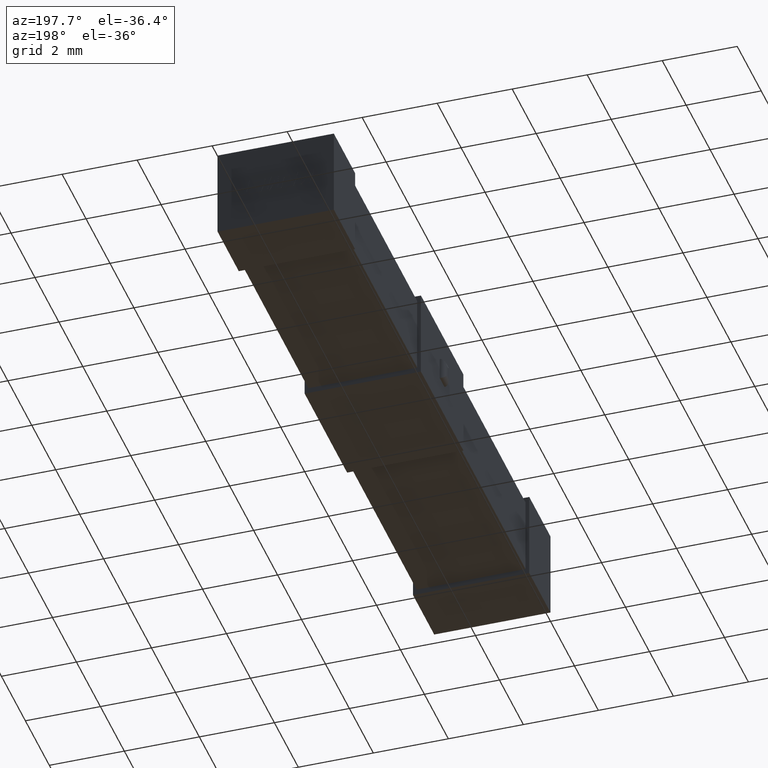
[diagram: clean part render]
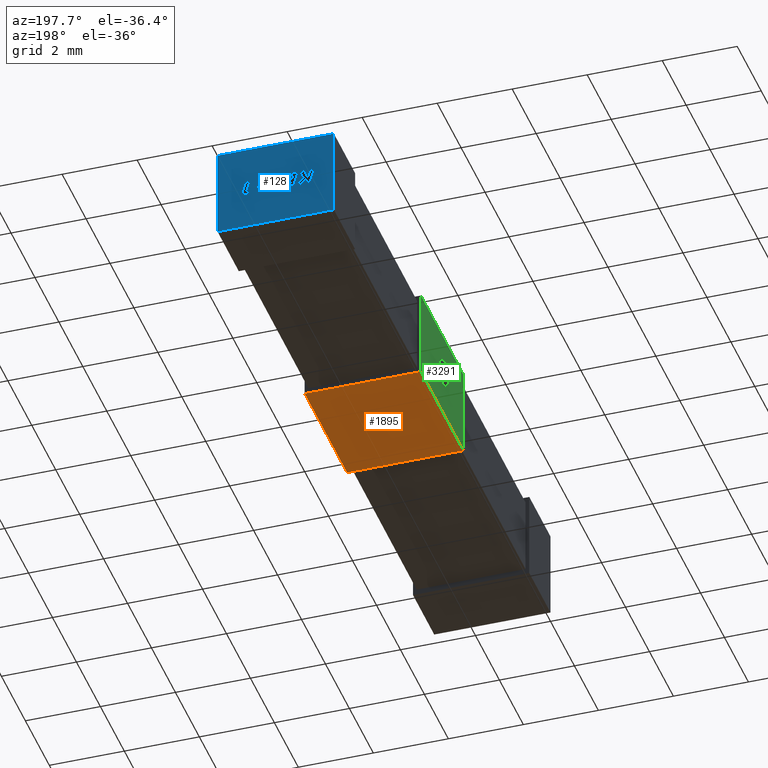
[diagram: same view with three faces highlighted in distinct colors, each labeled with its STEP entity id]
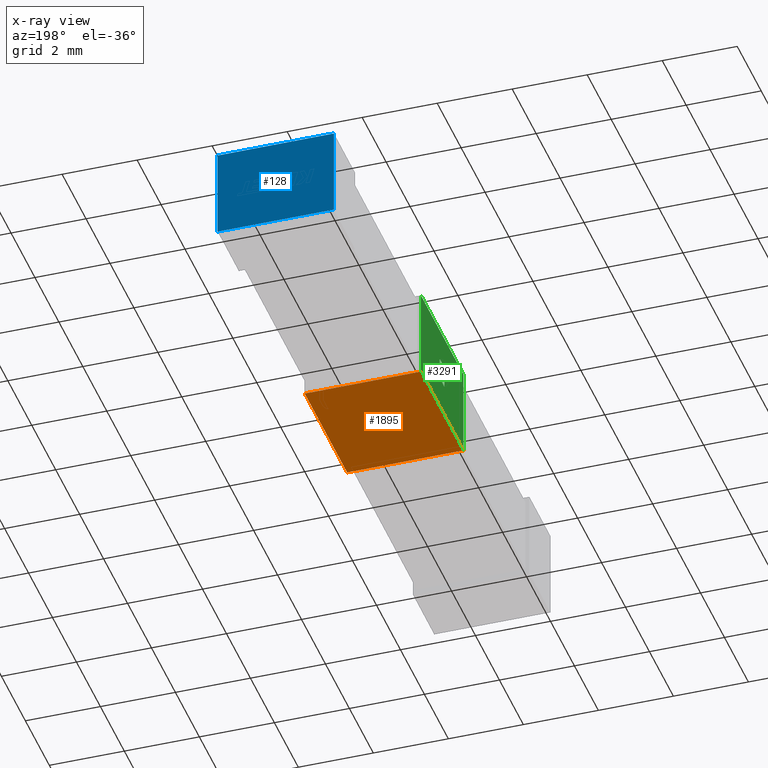
[diagram: x-ray of the same camera — body ghosted, the three highlighted faces saturated]
A machine part, auxiliary view with three faces highlighted in distinct colors.
The next image is the same camera in x-ray (body ghosted, the three faces saturated) — at least one of them is partly hidden behind the body in this view.
Their STEP definitions:

[orange] entity #1895 — the highlighted planar face has unit normal (0, 0, -1).
#73 = CARTESIAN_POINT ( 'NONE',  ( 0.0000000000000000000, 7.276200000000001100, 0.0000000000000000000 ) ) ;
#317 = CARTESIAN_POINT ( 'NONE',  ( 3.099999999999998800, 7.276200000000002900, 0.0000000000000000000 ) ) ;
#321 = CARTESIAN_POINT ( 'NONE',  ( 0.0000000000000000000, 0.0000000000000000000, 0.0000000000000000000 ) ) ;
#334 = CARTESIAN_POINT ( 'NONE',  ( 4.972310933898082800E-016, 10.82380000000000400, 0.0000000000000000000 ) ) ;
#372 = VERTEX_POINT ( 'NONE', #2208 ) ;
#377 = VERTEX_POINT ( 'NONE', #652 ) ;
#621 = EDGE_CURVE ( 'NONE', #372, #1376, #3283, .T. ) ;
#652 = CARTESIAN_POINT ( 'NONE',  ( 3.099999999999999600, 10.82380000000000400, 0.0000000000000000000 ) ) ;
#675 = DIRECTION ( 'NONE',  ( -1.000000000000000000, -0.0000000000000000000, 0.0000000000000000000 ) ) ;
#693 = CARTESIAN_POINT ( 'NONE',  ( 1.325533202461112200E-015, 7.276200000000002900, 0.0000000000000000000 ) ) ;
#726 = ORIENTED_EDGE ( 'NONE', *, *, #1868, .T. ) ;
#743 = CARTESIAN_POINT ( 'NONE',  ( 0.0000000000000000000, 0.0000000000000000000, 0.0000000000000000000 ) ) ;
#774 = LINE ( 'NONE', #990, #2398 ) ;
#808 = EDGE_LOOP ( 'NONE', ( #3152, #2605, #1685, #726 ) ) ;
#871 = AXIS2_PLACEMENT_3D ( 'NONE', #321, #1114, #2943 ) ;
#878 = FACE_OUTER_BOUND ( 'NONE', #808, .T. ) ;
#990 = CARTESIAN_POINT ( 'NONE',  ( 3.099999999999999600, 0.0000000000000000000, 0.0000000000000000000 ) ) ;
#1114 = DIRECTION ( 'NONE',  ( 0.0000000000000000000, 0.0000000000000000000, -1.000000000000000000 ) ) ;
#1149 = VERTEX_POINT ( 'NONE', #317 ) ;
#1376 = VERTEX_POINT ( 'NONE', #73 ) ;
#1685 = ORIENTED_EDGE ( 'NONE', *, *, #621, .F. ) ;
#1803 = DIRECTION ( 'NONE',  ( 2.396026900520452100E-017, 1.000000000000000000, 0.0000000000000000000 ) ) ;
#1868 = EDGE_CURVE ( 'NONE', #372, #377, #2033, .T. ) ;
#1895 = ADVANCED_FACE ( 'NONE', ( #878 ), #3151, .T. ) ;
#2033 = LINE ( 'NONE', #334, #3034 ) ;
#2208 = CARTESIAN_POINT ( 'NONE',  ( 4.972310933898082800E-016, 10.82380000000000400, 0.0000000000000000000 ) ) ;
#2322 = EDGE_CURVE ( 'NONE', #1149, #1376, #2899, .T. ) ;
#2342 = VECTOR ( 'NONE', #675, 1000.000000000000000 ) ;
#2398 = VECTOR ( 'NONE', #1803, 1000.000000000000000 ) ;
#2557 = DIRECTION ( 'NONE',  ( -0.0000000000000000000, -1.000000000000000000, -0.0000000000000000000 ) ) ;
#2605 = ORIENTED_EDGE ( 'NONE', *, *, #2322, .T. ) ;
#2884 = VECTOR ( 'NONE', #2557, 1000.000000000000000 ) ;
#2899 = LINE ( 'NONE', #693, #2342 ) ;
#2943 = DIRECTION ( 'NONE',  ( -1.000000000000000000, 0.0000000000000000000, -0.0000000000000000000 ) ) ;
#3034 = VECTOR ( 'NONE', #3195, 1000.000000000000000 ) ;
#3151 = PLANE ( 'NONE',  #871 ) ;
#3152 = ORIENTED_EDGE ( 'NONE', *, *, #3257, .F. ) ;
#3195 = DIRECTION ( 'NONE',  ( 1.000000000000000000, 0.0000000000000000000, 0.0000000000000000000 ) ) ;
#3257 = EDGE_CURVE ( 'NONE', #1149, #377, #774, .T. ) ;
#3283 = LINE ( 'NONE', #743, #2884 ) ;

[blue] entity #128 — the highlighted planar face has unit normal (0, -1, 0).
#42 = CARTESIAN_POINT ( 'NONE',  ( 3.100000000000000100, 18.10000000000000100, 2.399999999999999900 ) ) ;
#128 = ADVANCED_FACE ( 'NONE', ( #2125 ), #830, .F. ) ;
#151 = ORIENTED_EDGE ( 'NONE', *, *, #2304, .T. ) ;
#352 = VERTEX_POINT ( 'NONE', #2674 ) ;
#397 = EDGE_CURVE ( 'NONE', #352, #623, #651, .T. ) ;
#413 = DIRECTION ( 'NONE',  ( -0.0000000000000000000, -0.0000000000000000000, -1.000000000000000000 ) ) ;
#501 = LINE ( 'NONE', #1955, #2734 ) ;
#528 = CARTESIAN_POINT ( 'NONE',  ( 0.0000000000000000000, 18.10000000000000100, 0.0000000000000000000 ) ) ;
#604 = EDGE_LOOP ( 'NONE', ( #151, #1360, #823, #963 ) ) ;
#623 = VERTEX_POINT ( 'NONE', #1264 ) ;
#651 = LINE ( 'NONE', #1735, #930 ) ;
#735 = VECTOR ( 'NONE', #413, 1000.000000000000000 ) ;
#794 = DIRECTION ( 'NONE',  ( -1.000000000000000000, -0.0000000000000000000, -0.0000000000000000000 ) ) ;
#823 = ORIENTED_EDGE ( 'NONE', *, *, #2465, .F. ) ;
#830 = PLANE ( 'NONE',  #2860 ) ;
#839 = DIRECTION ( 'NONE',  ( 0.0000000000000000000, -1.000000000000000000, 0.0000000000000000000 ) ) ;
#930 = VECTOR ( 'NONE', #957, 1000.000000000000000 ) ;
#957 = DIRECTION ( 'NONE',  ( -0.0000000000000000000, -0.0000000000000000000, -1.000000000000000000 ) ) ;
#963 = ORIENTED_EDGE ( 'NONE', *, *, #3135, .T. ) ;
#1264 = CARTESIAN_POINT ( 'NONE',  ( 0.0000000000000000000, 18.10000000000000100, 0.0000000000000000000 ) ) ;
#1360 = ORIENTED_EDGE ( 'NONE', *, *, #397, .F. ) ;
#1676 = VECTOR ( 'NONE', #794, 1000.000000000000000 ) ;
#1735 = CARTESIAN_POINT ( 'NONE',  ( 0.0000000000000000000, 18.10000000000000100, 2.399999999999999900 ) ) ;
#1753 = LINE ( 'NONE', #3295, #735 ) ;
#1955 = CARTESIAN_POINT ( 'NONE',  ( 0.0000000000000000000, 18.10000000000000100, 2.399999999999999900 ) ) ;
#1990 = CARTESIAN_POINT ( 'NONE',  ( 3.100000000000000100, 18.10000000000000100, 0.0000000000000000000 ) ) ;
#2125 = FACE_OUTER_BOUND ( 'NONE', #604, .T. ) ;
#2246 = VERTEX_POINT ( 'NONE', #1990 ) ;
#2304 = EDGE_CURVE ( 'NONE', #2246, #623, #2678, .T. ) ;
#2350 = VERTEX_POINT ( 'NONE', #42 ) ;
#2465 = EDGE_CURVE ( 'NONE', #2350, #352, #501, .T. ) ;
#2674 = CARTESIAN_POINT ( 'NONE',  ( 0.0000000000000000000, 18.10000000000000100, 2.399999999999999900 ) ) ;
#2678 = LINE ( 'NONE', #528, #1676 ) ;
#2734 = VECTOR ( 'NONE', #3009, 1000.000000000000000 ) ;
#2860 = AXIS2_PLACEMENT_3D ( 'NONE', #2906, #839, #2894 ) ;
#2894 = DIRECTION ( 'NONE',  ( 0.0000000000000000000, -0.0000000000000000000, -1.000000000000000000 ) ) ;
#2906 = CARTESIAN_POINT ( 'NONE',  ( 0.0000000000000000000, 18.10000000000000100, 2.399999999999999900 ) ) ;
#3009 = DIRECTION ( 'NONE',  ( -1.000000000000000000, -0.0000000000000000000, -0.0000000000000000000 ) ) ;
#3135 = EDGE_CURVE ( 'NONE', #2350, #2246, #1753, .T. ) ;
#3295 = CARTESIAN_POINT ( 'NONE',  ( 3.100000000000000100, 18.10000000000000100, 2.399999999999999900 ) ) ;

[green] entity #3291 — the highlighted planar face has unit normal (1, 0, 0).
#1 = AXIS2_PLACEMENT_3D ( 'NONE', #2833, #3067, #2565 ) ;
#25 = VECTOR ( 'NONE', #2429, 1000.000000000000000 ) ;
#44 = DIRECTION ( 'NONE',  ( -0.0000000000000000000, -0.0000000000000000000, 1.000000000000000000 ) ) ;
#66 = LINE ( 'NONE', #606, #25 ) ;
#72 = VERTEX_POINT ( 'NONE', #3111 ) ;
#73 = CARTESIAN_POINT ( 'NONE',  ( 0.0000000000000000000, 7.276200000000001100, 0.0000000000000000000 ) ) ;
#94 = FACE_OUTER_BOUND ( 'NONE', #510, .T. ) ;
#135 = VECTOR ( 'NONE', #2056, 1000.000000000000000 ) ;
#220 = VERTEX_POINT ( 'NONE', #1355 ) ;
#223 = PLANE ( 'NONE',  #1 ) ;
#261 = EDGE_CURVE ( 'NONE', #1376, #757, #66, .T. ) ;
#268 = LINE ( 'NONE', #1863, #814 ) ;
#372 = VERTEX_POINT ( 'NONE', #2208 ) ;
#398 = VECTOR ( 'NONE', #959, 1000.000000000000000 ) ;
#420 = ORIENTED_EDGE ( 'NONE', *, *, #2233, .F. ) ;
#478 = ORIENTED_EDGE ( 'NONE', *, *, #3011, .F. ) ;
#480 = VECTOR ( 'NONE', #717, 1000.000000000000000 ) ;
#485 = LINE ( 'NONE', #1517, #135 ) ;
#510 = EDGE_LOOP ( 'NONE', ( #2220, #3026, #1353, #420 ) ) ;
#512 = VECTOR ( 'NONE', #44, 1000.000000000000000 ) ;
#526 = LINE ( 'NONE', #710, #398 ) ;
#606 = CARTESIAN_POINT ( 'NONE',  ( 1.325533202461112200E-015, 7.276200000000002900, 2.250000000000000000 ) ) ;
#621 = EDGE_CURVE ( 'NONE', #372, #1376, #3283, .T. ) ;
#702 = DIRECTION ( 'NONE',  ( -0.0000000000000000000, -0.0000000000000000000, 1.000000000000000000 ) ) ;
#710 = CARTESIAN_POINT ( 'NONE',  ( 0.0000000000000000000, 9.250001000000002800, 0.8999999999999998000 ) ) ;
#717 = DIRECTION ( 'NONE',  ( -0.0000000000000000000, -1.000000000000000000, -0.0000000000000000000 ) ) ;
#741 = CARTESIAN_POINT ( 'NONE',  ( 1.325533202461112200E-015, 7.276200000000002900, 2.399999999999999900 ) ) ;
#743 = CARTESIAN_POINT ( 'NONE',  ( 0.0000000000000000000, 0.0000000000000000000, 0.0000000000000000000 ) ) ;
#757 = VERTEX_POINT ( 'NONE', #741 ) ;
#814 = VECTOR ( 'NONE', #1348, 1000.000000000000000 ) ;
#915 = LINE ( 'NONE', #2270, #2074 ) ;
#959 = DIRECTION ( 'NONE',  ( -0.0000000000000000000, -0.0000000000000000000, -1.000000000000000000 ) ) ;
#1035 = LINE ( 'NONE', #3277, #512 ) ;
#1320 = EDGE_CURVE ( 'NONE', #1568, #2821, #268, .T. ) ;
#1348 = DIRECTION ( 'NONE',  ( -0.0000000000000000000, 1.000000000000000000, -0.0000000000000000000 ) ) ;
#1353 = ORIENTED_EDGE ( 'NONE', *, *, #1501, .F. ) ;
#1355 = CARTESIAN_POINT ( 'NONE',  ( 0.0000000000000000000, 9.250001000000002800, 0.8999999999999998000 ) ) ;
#1376 = VERTEX_POINT ( 'NONE', #73 ) ;
#1452 = CARTESIAN_POINT ( 'NONE',  ( 0.0000000000000000000, 0.0000000000000000000, 2.399999999999999900 ) ) ;
#1501 = EDGE_CURVE ( 'NONE', #3270, #757, #2313, .T. ) ;
#1517 = CARTESIAN_POINT ( 'NONE',  ( 0.0000000000000000000, 9.050000000000002500, 0.8999999999999998000 ) ) ;
#1536 = EDGE_CURVE ( 'NONE', #72, #1568, #915, .T. ) ;
#1568 = VERTEX_POINT ( 'NONE', #1742 ) ;
#1613 = ORIENTED_EDGE ( 'NONE', *, *, #1320, .F. ) ;
#1663 = ORIENTED_EDGE ( 'NONE', *, *, #1536, .F. ) ;
#1742 = CARTESIAN_POINT ( 'NONE',  ( 0.0000000000000000000, 8.849999000000002200, 1.499999999999999600 ) ) ;
#1855 = ORIENTED_EDGE ( 'NONE', *, *, #3238, .F. ) ;
#1863 = CARTESIAN_POINT ( 'NONE',  ( 0.0000000000000000000, 9.250001000000002800, 1.499999999999999600 ) ) ;
#2056 = DIRECTION ( 'NONE',  ( -0.0000000000000000000, -1.000000000000000000, -0.0000000000000000000 ) ) ;
#2074 = VECTOR ( 'NONE', #702, 1000.000000000000000 ) ;
#2208 = CARTESIAN_POINT ( 'NONE',  ( 4.972310933898082800E-016, 10.82380000000000400, 0.0000000000000000000 ) ) ;
#2220 = ORIENTED_EDGE ( 'NONE', *, *, #621, .T. ) ;
#2233 = EDGE_CURVE ( 'NONE', #372, #3270, #1035, .T. ) ;
#2270 = CARTESIAN_POINT ( 'NONE',  ( 0.0000000000000000000, 8.849999000000002200, 1.499999999999999600 ) ) ;
#2313 = LINE ( 'NONE', #1452, #480 ) ;
#2429 = DIRECTION ( 'NONE',  ( -0.0000000000000000000, -0.0000000000000000000, 1.000000000000000000 ) ) ;
#2557 = DIRECTION ( 'NONE',  ( -0.0000000000000000000, -1.000000000000000000, -0.0000000000000000000 ) ) ;
#2565 = DIRECTION ( 'NONE',  ( 0.0000000000000000000, 0.0000000000000000000, -1.000000000000000000 ) ) ;
#2821 = VERTEX_POINT ( 'NONE', #2930 ) ;
#2833 = CARTESIAN_POINT ( 'NONE',  ( 0.0000000000000000000, 0.0000000000000000000, 2.399999999999999900 ) ) ;
#2884 = VECTOR ( 'NONE', #2557, 1000.000000000000000 ) ;
#2915 = FACE_BOUND ( 'NONE', #3095, .T. ) ;
#2930 = CARTESIAN_POINT ( 'NONE',  ( 0.0000000000000000000, 9.250001000000002800, 1.499999999999999600 ) ) ;
#3011 = EDGE_CURVE ( 'NONE', #2821, #220, #526, .T. ) ;
#3026 = ORIENTED_EDGE ( 'NONE', *, *, #261, .T. ) ;
#3067 = DIRECTION ( 'NONE',  ( 1.000000000000000000, 0.0000000000000000000, 0.0000000000000000000 ) ) ;
#3088 = CARTESIAN_POINT ( 'NONE',  ( 0.0000000000000000000, 10.82380000000000000, 2.399999999999999900 ) ) ;
#3095 = EDGE_LOOP ( 'NONE', ( #1663, #1855, #478, #1613 ) ) ;
#3111 = CARTESIAN_POINT ( 'NONE',  ( 0.0000000000000000000, 8.849999000000002200, 0.8999999999999998000 ) ) ;
#3238 = EDGE_CURVE ( 'NONE', #220, #72, #485, .T. ) ;
#3270 = VERTEX_POINT ( 'NONE', #3088 ) ;
#3277 = CARTESIAN_POINT ( 'NONE',  ( 4.972310933898082800E-016, 10.82380000000000400, 2.250000000000000000 ) ) ;
#3283 = LINE ( 'NONE', #743, #2884 ) ;
#3291 = ADVANCED_FACE ( 'NONE', ( #94, #2915 ), #223, .F. ) ;